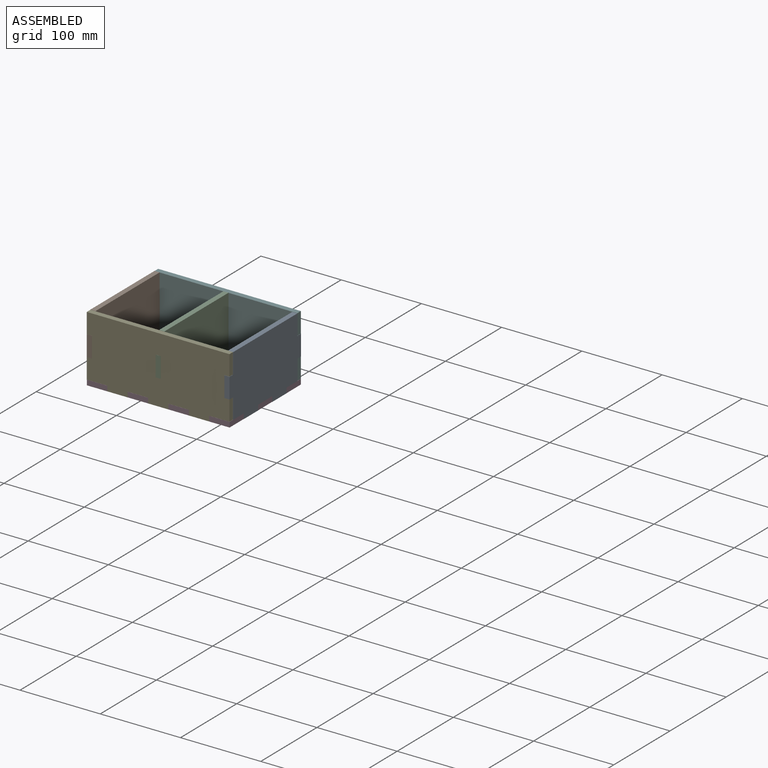
[diagram: assembled view]
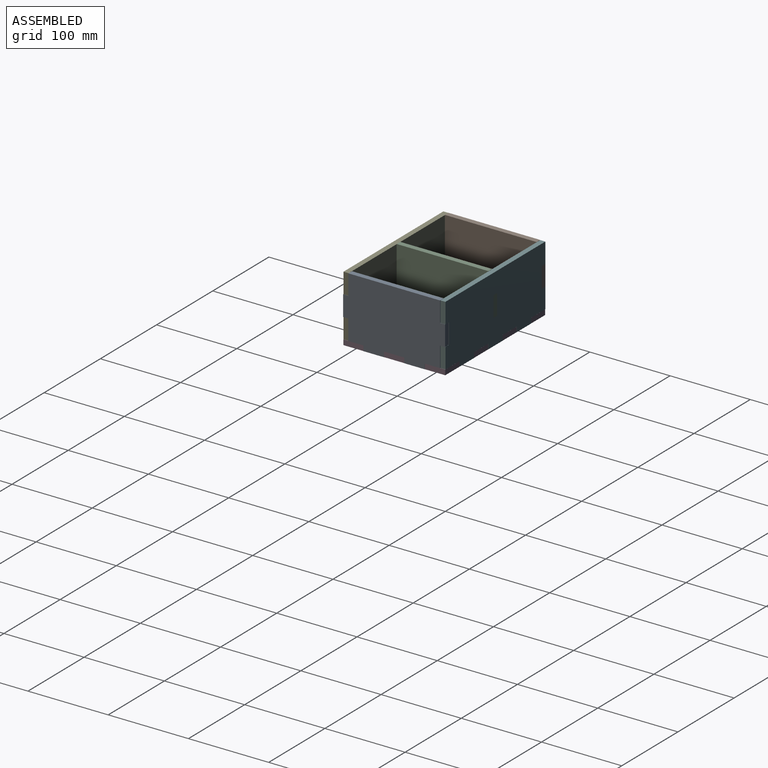
[diagram: assembled view, second angle]
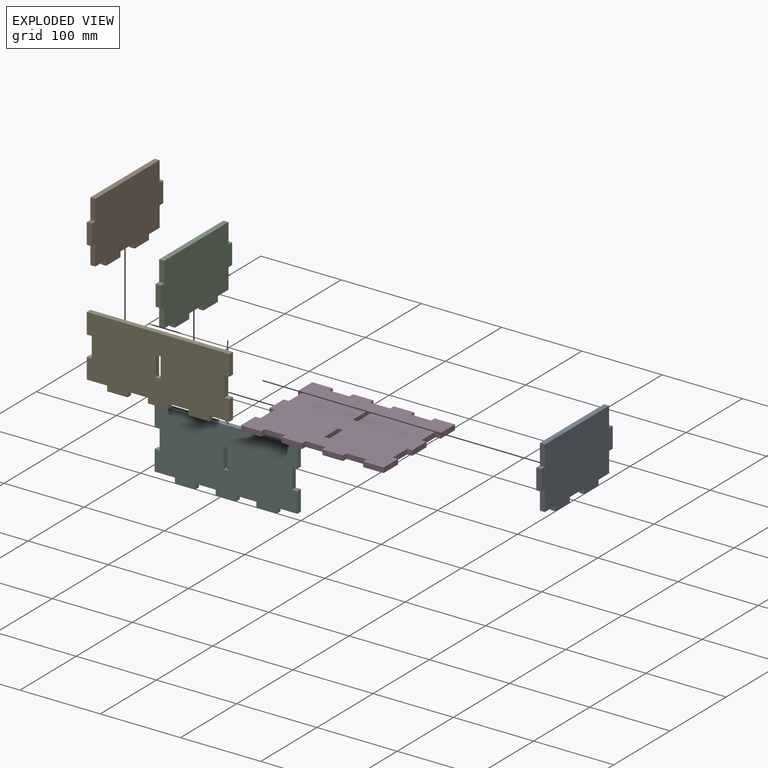
[diagram: exploded view]
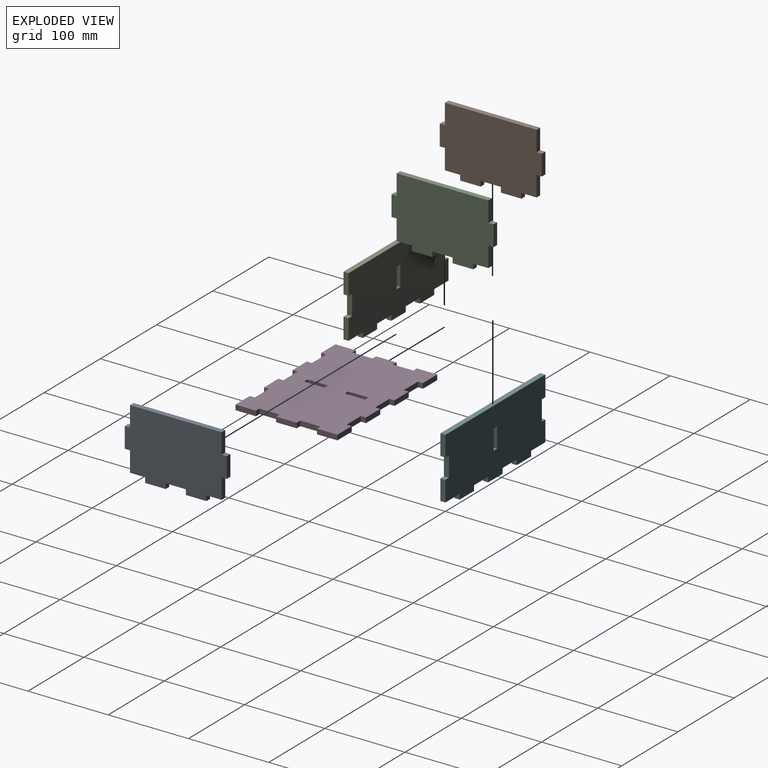
[diagram: exploded view, second angle]
ASSEMBLY  parts=6 mates=5
PART A: 22 faces, bbox 6.4x127.2x82.6 mm
  f0: plane 6.44x6.35mm, normal (0,0,-1), area 40.9mm2, adj f1,f19,f20,f21
  f1: plane 25.31x6.35mm, normal (0,-1,0), area 160.7mm2, adj f0,f2,f20,f21
  f2: plane 18.96x6.35mm, normal (0,0,-1), area 120.4mm2, adj f1,f3,f20,f21
  f3: plane 6.44x6.35mm, normal (0,-1,0), area 40.9mm2, adj f2,f4,f20,f21
  f4: plane 25.58x6.35mm, normal (0,0,-1), area 162.4mm2, adj f3,f5,f20,f21
  f5: plane 6.44x6.35mm, normal (0,1,0), area 40.9mm2, adj f4,f6,f20,f21
  f6: plane 25.22x6.35mm, normal (0,0,-1), area 160.2mm2, adj f5,f7,f20,f21
  f7: plane 6.44x6.35mm, normal (0,-1,0), area 40.9mm2, adj f6,f8,f20,f21
  f8: plane 25.58x6.35mm, normal (0,0,-1), area 162.4mm2, adj f7,f9,f20,f21
  f9: plane 6.44x6.35mm, normal (0,1,0), area 40.9mm2, adj f8,f10,f20,f21
  f10: plane 18.96x6.35mm, normal (0,0,-1), area 120.4mm2, adj f9,f11,f20,f21
  f11: plane 25.31x6.35mm, normal (0,1,0), area 160.7mm2, adj f10,f12,f20,f21
  f12: plane 6.44x6.35mm, normal (0,0,-1), area 40.9mm2, adj f11,f13,f20,f21
  f13: plane 25.58x6.35mm, normal (0,1,0), area 162.4mm2, adj f12,f14,f20,f21
  f14: plane 6.44x6.35mm, normal (0,0,1), area 40.9mm2, adj f13,f15,f20,f21
  f15: plane 25.31x6.35mm, normal (0,1,0), area 160.7mm2, adj f14,f16,f20,f21
  f16: plane 114.3x6.35mm, normal (0,0,1), area 725.8mm2, adj f15,f17,f20,f21
  f17: plane 25.31x6.35mm, normal (0,-1,0), area 160.7mm2, adj f16,f18,f20,f21
  f18: plane 6.44x6.35mm, normal (0,0,1), area 40.9mm2, adj f17,f19,f20,f21
  f19: plane 25.58x6.35mm, normal (0,-1,0), area 162.4mm2, adj f0,f18,f20,f21
  f20: plane 127.18x82.64mm, normal (1,0,0), area 9368.4mm2, adj f0,f1,f2,f3,f4,f5,f6,f7
  f21: plane 127.18x82.64mm, normal (-1,0,0), area 9368.4mm2, adj f0,f1,f2,f3,f4,f5,f6,f7
PART B: same geometry as A
PART C: same geometry as A
PART D: 54 faces, bbox 177.8x127x6.4 mm
  f0: plane 6.35x6.26mm, normal (1,0,0), area 39.8mm2, adj f1,f43,f44,f45
  f1: plane 25.22x6.35mm, normal (0,-1,0), area 160.2mm2, adj f0,f2,f44,f45
  f2: plane 6.35x6.26mm, normal (-1,0,0), area 39.8mm2, adj f1,f3,f44,f45
  f3: plane 25.49x6.35mm, normal (0,-1,0), area 161.9mm2, adj f2,f4,f44,f45
  f4: plane 25.49x6.35mm, normal (1,0,0), area 161.9mm2, adj f3,f5,f44,f45
  f5: plane 6.35x6.26mm, normal (0,1,0), area 39.8mm2, adj f4,f6,f44,f45
  f6: plane 25.22x6.35mm, normal (1,0,0), area 160.2mm2, adj f5,f7,f44,f45
  f7: plane 6.35x6.26mm, normal (0,-1,0), area 39.8mm2, adj f6,f8,f44,f45
  f8: plane 25.58x6.35mm, normal (1,0,0), area 162.4mm2, adj f7,f9,f44,f45
  f9: plane 6.35x6.26mm, normal (0,1,0), area 39.8mm2, adj f8,f10,f44,f45
  f10: plane 25.22x6.35mm, normal (1,0,0), area 160.2mm2, adj f9,f11,f44,f45
  f11: plane 6.35x6.26mm, normal (0,-1,0), area 39.8mm2, adj f10,f12,f44,f45
  f12: plane 25.49x6.35mm, normal (1,0,0), area 161.9mm2, adj f11,f13,f44,f45
  f13: plane 25.49x6.35mm, normal (0,1,0), area 161.9mm2, adj f12,f14,f44,f45
  f14: plane 6.35x6.26mm, normal (-1,0,0), area 39.8mm2, adj f13,f15,f44,f45
  f15: plane 25.22x6.35mm, normal (0,1,0), area 160.2mm2, adj f14,f16,f44,f45
  f16: plane 6.35x6.26mm, normal (1,0,0), area 39.8mm2, adj f15,f17,f44,f45
  f17: plane 25.58x6.35mm, normal (0,1,0), area 162.4mm2, adj f16,f18,f44,f45
  f18: plane 6.35x6.26mm, normal (-1,0,0), area 39.8mm2, adj f17,f19,f44,f45
  f19: plane 25.22x6.35mm, normal (0,1,0), area 160.2mm2, adj f18,f20,f44,f45
  f20: plane 6.35x6.26mm, normal (1,0,0), area 39.8mm2, adj f19,f21,f44,f45
  f21: plane 25.58x6.35mm, normal (0,1,0), area 162.4mm2, adj f20,f22,f44,f45
  f22: plane 6.35x6.26mm, normal (-1,0,0), area 39.8mm2, adj f21,f23,f44,f45
  f23: plane 25.22x6.35mm, normal (0,1,0), area 160.2mm2, adj f22,f24,f44,f45
  f24: plane 6.35x6.26mm, normal (1,0,0), area 39.8mm2, adj f23,f25,f44,f45
  f25: plane 25.49x6.35mm, normal (0,1,0), area 161.9mm2, adj f24,f26,f44,f45
  f26: plane 25.49x6.35mm, normal (-1,0,0), area 161.9mm2, adj f25,f27,f44,f45
  f27: plane 6.35x6.26mm, normal (0,-1,0), area 39.8mm2, adj f26,f28,f44,f45
  f28: plane 25.22x6.35mm, normal (-1,0,0), area 160.2mm2, adj f27,f29,f44,f45
  f29: plane 6.35x6.26mm, normal (0,1,0), area 39.8mm2, adj f28,f30,f44,f45
  f30: plane 25.58x6.35mm, normal (-1,0,0), area 162.4mm2, adj f29,f31,f44,f45
  f31: plane 6.35x6.26mm, normal (0,-1,0), area 39.8mm2, adj f30,f32,f44,f45
  f32: plane 25.22x6.35mm, normal (-1,0,0), area 160.2mm2, adj f31,f33,f44,f45
  f33: plane 6.35x6.26mm, normal (0,1,0), area 39.8mm2, adj f32,f34,f44,f45
  f34: plane 25.49x6.35mm, normal (-1,0,0), area 161.9mm2, adj f33,f35,f44,f45
  f35: plane 25.49x6.35mm, normal (0,-1,0), area 161.9mm2, adj f34,f36,f44,f45
  f36: plane 6.35x6.26mm, normal (1,0,0), area 39.8mm2, adj f35,f37,f44,f45
  f37: plane 25.22x6.35mm, normal (0,-1,0), area 160.2mm2, adj f36,f38,f44,f45
  f38: plane 6.35x6.26mm, normal (-1,0,0), area 39.8mm2, adj f37,f39,f44,f45
  f39: plane 25.58x6.35mm, normal (0,-1,0), area 162.4mm2, adj f38,f40,f44,f45
  f40: plane 6.35x6.26mm, normal (1,0,0), area 39.8mm2, adj f39,f41,f44,f45
  f41: plane 25.22x6.35mm, normal (0,-1,0), area 160.2mm2, adj f40,f42,f44,f45
  f42: plane 6.35x6.26mm, normal (-1,0,0), area 39.8mm2, adj f41,f43,f44,f45
  f43: plane 25.58x6.35mm, normal (0,-1,0), area 162.4mm2, adj f0,f42,f44,f45
  f44: plane 177.8x127mm, normal (0,0,1), area 20690.1mm2, adj f0,f1,f2,f3,f4,f5,f6,f7
  f45: plane 177.8x127mm, normal (0,0,-1), area 20690.1mm2, adj f0,f1,f2,f3,f4,f5,f6,f7
  f46: plane 25.22x6.35mm, normal (1,0,0), area 160.2mm2, adj f44,f45,f47,f49
  f47: plane 6.35x6.17mm, normal (0,1,0), area 39.2mm2, adj f44,f45,f46,f48
  f48: plane 25.22x6.35mm, normal (-1,0,0), area 160.2mm2, adj f44,f45,f47,f49
  f49: plane 6.35x6.17mm, normal (0,-1,0), area 39.2mm2, adj f44,f45,f46,f48
  f50: plane 25.22x6.35mm, normal (1,0,0), area 160.2mm2, adj f44,f45,f51,f53
  f51: plane 6.35x6.17mm, normal (0,1,0), area 39.2mm2, adj f44,f45,f50,f52
  f52: plane 25.22x6.35mm, normal (-1,0,0), area 160.2mm2, adj f44,f45,f51,f53
  f53: plane 6.35x6.17mm, normal (0,-1,0), area 39.2mm2, adj f44,f45,f50,f52
PART E: 30 faces, bbox 177.8x6.4x82.6 mm
  f0: plane 6.35x6.26mm, normal (0,0,-1), area 39.8mm2, adj f1,f27,f28,f29
  f1: plane 25.49x6.35mm, normal (1,0,0), area 161.9mm2, adj f0,f2,f28,f29
  f2: plane 177.8x6.35mm, normal (0,0,1), area 1129mm2, adj f1,f3,f28,f29
  f3: plane 25.49x6.35mm, normal (-1,0,0), area 161.9mm2, adj f2,f4,f28,f29
  f4: plane 6.35x6.26mm, normal (0,0,-1), area 39.8mm2, adj f3,f5,f28,f29
  f5: plane 25.22x6.35mm, normal (-1,0,0), area 160.2mm2, adj f4,f6,f28,f29
  f6: plane 6.35x6.26mm, normal (0,0,1), area 39.8mm2, adj f5,f7,f28,f29
  f7: plane 25.49x6.35mm, normal (-1,0,0), area 161.9mm2, adj f6,f8,f28,f29
  f8: plane 25.31x6.35mm, normal (0,0,-1), area 160.7mm2, adj f7,f9,f28,f29
  f9: plane 6.44x6.35mm, normal (-1,0,0), area 40.9mm2, adj f8,f10,f28,f29
  f10: plane 25.58x6.35mm, normal (0,0,-1), area 162.4mm2, adj f9,f11,f28,f29
  f11: plane 6.44x6.35mm, normal (1,0,0), area 40.9mm2, adj f10,f12,f28,f29
  f12: plane 25.22x6.35mm, normal (0,0,-1), area 160.2mm2, adj f11,f13,f28,f29
  f13: plane 6.44x6.35mm, normal (-1,0,0), area 40.9mm2, adj f12,f14,f28,f29
  f14: plane 25.58x6.35mm, normal (0,0,-1), area 162.4mm2, adj f13,f15,f28,f29
  f15: plane 6.44x6.35mm, normal (1,0,0), area 40.9mm2, adj f14,f16,f28,f29
  f16: plane 25.22x6.35mm, normal (0,0,-1), area 160.2mm2, adj f15,f17,f28,f29
  f17: plane 6.44x6.35mm, normal (-1,0,0), area 40.9mm2, adj f16,f18,f28,f29
  f18: plane 25.58x6.35mm, normal (0,0,-1), area 162.4mm2, adj f17,f19,f28,f29
  f19: plane 6.44x6.35mm, normal (1,0,0), area 40.9mm2, adj f18,f20,f28,f29
  f20: plane 25.31x6.35mm, normal (0,0,-1), area 160.7mm2, adj f19,f21,f28,f29
  f21: plane 25.49x6.35mm, normal (1,0,0), area 161.9mm2, adj f20,f22,f28,f29
  f22: plane 6.35x6.26mm, normal (0,0,1), area 39.8mm2, adj f21,f27,f28,f29
  f23: plane 6.35x6.17mm, normal (0,0,1), area 39.2mm2, adj f24,f26,f28,f29
  f24: plane 25.22x6.35mm, normal (1,0,0), area 160.2mm2, adj f23,f25,f28,f29
  f25: plane 6.35x6.17mm, normal (0,0,-1), area 39.2mm2, adj f24,f26,f28,f29
  f26: plane 25.22x6.35mm, normal (-1,0,0), area 160.2mm2, adj f23,f25,f28,f29
  f27: plane 25.22x6.35mm, normal (1,0,0), area 160.2mm2, adj f0,f22,f28,f29
  f28: plane 177.8x82.64mm, normal (0,-1,0), area 13570.9mm2, adj f0,f1,f2,f3,f4,f5,f6,f7
  f29: plane 177.8x82.64mm, normal (0,1,0), area 13570.9mm2, adj f0,f1,f2,f3,f4,f5,f6,f7
PART F: same geometry as E
PLACE A t=(-6.26,-120.83,6.35)mm
PLACE B t=(-177.98,-120.65,6.62)mm
PLACE C t=(-92.16,-120.65,6.62)mm
PLACE D t=(-124.77,-46.6,0)mm
PLACE E t=(-177.98,-120.65,6.44)mm
PLACE F t=(-177.98,0.09,6.44)mm
MATE fastened C.f13 <-> F.f29  axis (0,1,0) through (-92.16,0.09,31.93)mm
MATE fastened B.f13 <-> F.f29  axis (0,1,0) through (-177.98,0.09,31.93)mm
MATE fastened F.f18 <-> D.f45  axis (0,0,1) through (-25.49,-6.26,0)mm
MATE fastened A.f21 <-> D.f10  axis (-1,0,0) through (-6.26,-25.49,6.35)mm
MATE fastened E.f28 <-> D.f3  axis (0,-1,0) through (-25.49,-127,0)mm
